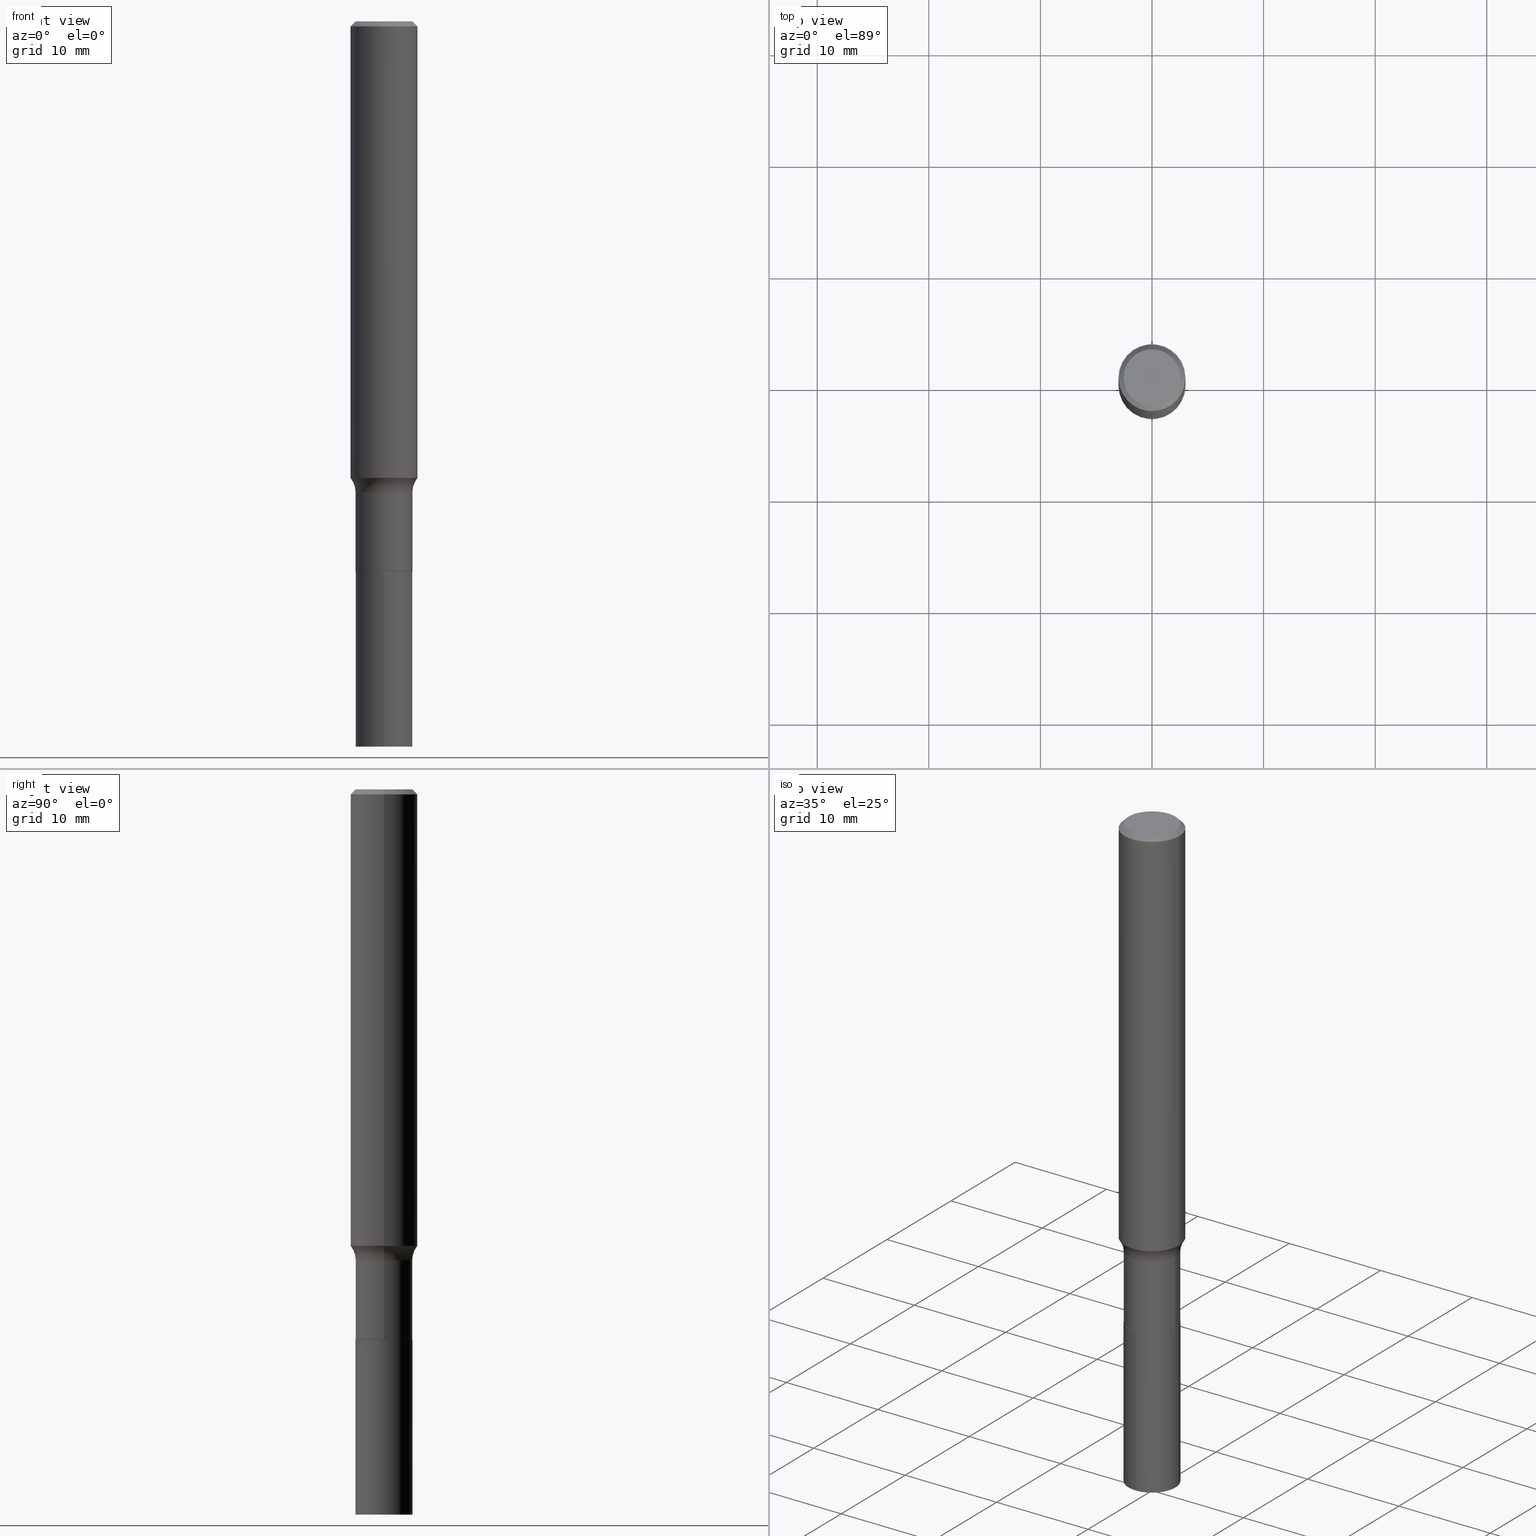
[diagram: canonical four-view strip — front | top / right | iso, engineering-drawing reading convention]
A machine part, canonical four-view strip (front | top / right | iso — engineering-drawing reading convention). The complete STEP part file that produces these views, byte-faithful:
ISO-10303-21;
HEADER;
FILE_DESCRIPTION (( 'STEP AP203' ),
    '1' );
FILE_NAME ('58817.STEP',
    '2024-04-19T14:42:58',
    ( '' ),
    ( '' ),
    'SwSTEP 2.0',
    'SolidWorks 2023',
    '' );
FILE_SCHEMA (( 'CONFIG_CONTROL_DESIGN' ));
ENDSEC;

DATA;
#1 = CARTESIAN_POINT ( 'NONE',  ( 7.015701749847187307E-46, -1.001656274515824970E-31, -2.868857591682589212E-17 ) ) ;
#2 = DIRECTION ( 'NONE',  ( -2.445468806185136597E-29, 3.491481338843145583E-15, 1.000000000000000000 ) ) ;
#3 = AXIS2_PLACEMENT_3D ( 'NONE', #333, #296, #6 ) ;
#4 = ORIENTED_EDGE ( 'NONE', *, *, #187, .T. ) ;
#5 = AXIS2_PLACEMENT_3D ( 'NONE', #364, #435, #299 ) ;
#6 = DIRECTION ( 'NONE',  ( 1.000000000000000000, -6.982962677686267499E-15, 0.000000000000000000 ) ) ;
#7 = APPLICATION_CONTEXT ( 'configuration controlled 3d designs of mechanical parts and assemblies' ) ;
#8 = AXIS2_PLACEMENT_3D ( 'NONE', #133, #211, #420 ) ;
#9 = ORIENTED_EDGE ( 'NONE', *, *, #131, .T. ) ;
#10 = VERTEX_POINT ( 'NONE', #185 ) ;
#11 = ORIENTED_EDGE ( 'NONE', *, *, #161, .T. ) ;
#12 = CIRCLE ( 'NONE', #268, 0.1004999999999999921 ) ;
#13 = EDGE_LOOP ( 'NONE', ( #335, #410, #83, #302 ) ) ;
#14 = DIRECTION ( 'NONE',  ( -2.445468806185136877E-29, 3.491481338843145188E-15, 1.000000000000000000 ) ) ;
#15 = ORIENTED_EDGE ( 'NONE', *, *, #289, .F. ) ;
#16 = SHAPE_DEFINITION_REPRESENTATION ( #367, #87 ) ;
#17 = CARTESIAN_POINT ( 'NONE',  ( -0.1004999999999999921, -5.573189571482893851E-15, -1.940600000000000325 ) ) ;
#18 = FACE_OUTER_BOUND ( 'NONE', #375, .T. ) ;
#19 = ORIENTED_EDGE ( 'NONE', *, *, #363, .F. ) ;
#20 = EDGE_CURVE ( 'NONE', #200, #164, #277, .T. ) ;
#21 = CARTESIAN_POINT ( 'NONE',  ( 0.1000000000000000056, -7.475610694597056827E-15, -1.941100000000000270 ) ) ;
#22 = DIRECTION ( 'NONE',  ( 1.000000000000000000, -6.982962677686267499E-15, 4.883557194083112901E-29 ) ) ;
#23 = AXIS2_PLACEMENT_3D ( 'NONE', #107, #213, #387 ) ;
#24 = FACE_OUTER_BOUND ( 'NONE', #149, .T. ) ;
#25 = VECTOR ( 'NONE', #315, 39.37007874015748143 ) ;
#26 = LINE ( 'NONE', #394, #232 ) ;
#27 = DATE_TIME_ROLE ( 'classification_date' ) ;
#28 = CARTESIAN_POINT ( 'NONE',  ( 6.260876778854223555E-29, -8.931215480289977409E-15, -2.559100000000000374 ) ) ;
#29 = ADVANCED_FACE ( 'NONE', ( #76 ), #199, .T. ) ;
#30 = DIRECTION ( 'NONE',  ( -6.982962677686265922E-15, -1.000000000000000000, 2.718256710113694497E-15 ) ) ;
#31 = PRODUCT_DEFINITION_FORMATION_WITH_SPECIFIED_SOURCE ( 'ANY', '', #301, .NOT_KNOWN. ) ;
#32 = APPROVAL_DATE_TIME ( #321, #331 ) ;
#33 = FACE_OUTER_BOUND ( 'NONE', #229, .T. ) ;
#34 = MANIFOLD_SOLID_BREP ( 'Body-Move/Copy2[1]', #78 ) ;
#35 = VECTOR ( 'NONE', #448, 39.37007874015748854 ) ;
#36 = CARTESIAN_POINT ( 'NONE',  ( 4.746899499685969430E-29, -6.777314426828430156E-15, -1.941100000000000270 ) ) ;
#37 = ADVANCED_FACE ( 'NONE', ( #41 ), #70, .T. ) ;
#38 = ORIENTED_EDGE ( 'NONE', *, *, #220, .T. ) ;
#39 = AXIS2_PLACEMENT_3D ( 'NONE', #114, #402, #459 ) ;
#40 = AXIS2_PLACEMENT_3D ( 'NONE', #165, #323, #170 ) ;
#41 = FACE_OUTER_BOUND ( 'NONE', #368, .T. ) ;
#42 = DIRECTION ( 'NONE',  ( -1.000000000000000000, 6.982962677686267499E-15, 0.000000000000000000 ) ) ;
#43 = APPROVAL_STATUS ( 'not_yet_approved' ) ;
#44 = CC_DESIGN_PERSON_AND_ORGANIZATION_ASSIGNMENT ( #366, #192, ( #301 ) ) ;
#45 = LOCAL_TIME ( 10, 42, 58.00000000000000000, #250 ) ;
#46 = AXIS2_PLACEMENT_3D ( 'NONE', #1, #450, #278 ) ;
#47 = ORIENTED_EDGE ( 'NONE', *, *, #353, .T. ) ;
#48 = ORIENTED_EDGE ( 'NONE', *, *, #272, .F. ) ;
#49 = ADVANCED_FACE ( 'NONE', ( #225 ), #407, .F. ) ;
#50 = ORIENTED_EDGE ( 'NONE', *, *, #447, .T. ) ;
#51 = AXIS2_PLACEMENT_3D ( 'NONE', #152, #189, #42 ) ;
#52 = CYLINDRICAL_SURFACE ( 'NONE', #392, 0.1004999999999999921 ) ;
#53 = ORIENTED_EDGE ( 'NONE', *, *, #20, .F. ) ;
#54 = UNCERTAINTY_MEASURE_WITH_UNIT (LENGTH_MEASURE( 1.000000000000000082E-05 ), #436, 'distance_accuracy_value', 'NONE');
#55 = SECURITY_CLASSIFICATION_LEVEL ( 'unclassified' ) ;
#56 = EDGE_CURVE ( 'NONE', #88, #164, #91, .T. ) ;
#57 = LINE ( 'NONE', #145, #401 ) ;
#58 = ORIENTED_EDGE ( 'NONE', *, *, #363, .T. ) ;
#59 = CARTESIAN_POINT ( 'NONE',  ( 4.746899499685969430E-29, -6.777314426828430156E-15, -1.941100000000000270 ) ) ;
#60 = PRODUCT_DEFINITION ( 'UNKNOWN', '', #31, #112 ) ;
#61 = CARTESIAN_POINT ( 'NONE',  ( -0.1000000000000000056, -6.066771691068330128E-15, -1.941100000000000270 ) ) ;
#62 = CIRCLE ( 'NONE', #3, 0.1181000000000000105 ) ;
#63 = DIRECTION ( 'NONE',  ( -2.445468806185136597E-29, 3.491481338843145583E-15, 1.000000000000000000 ) ) ;
#64 = CARTESIAN_POINT ( 'NONE',  ( -0.1004999999999999921, 7.140954494389006308E-16, -4.943529765706180112E-30 ) ) ;
#65 = APPROVAL_DATE_TIME ( #290, #382 ) ;
#66 = EDGE_CURVE ( 'NONE', #122, #88, #462, .T. ) ;
#67 = DIRECTION ( 'NONE',  ( -2.445468806185136597E-29, 3.491481338843145583E-15, 1.000000000000000000 ) ) ;
#68 = DIRECTION ( 'NONE',  ( -2.445468806185136877E-29, 3.491481338843145188E-15, 1.000000000000000000 ) ) ;
#69 = APPROVAL_DATE_TIME ( #395, #348 ) ;
#70 = CONICAL_SURFACE ( 'NONE', #51, 0.1181000000000000105, 0.7853981633974456145 ) ;
#71 = CARTESIAN_POINT ( 'NONE',  ( 0.1000000000000000056, -7.475610694597056827E-15, -1.941100000000000270 ) ) ;
#72 = AXIS2_PLACEMENT_3D ( 'NONE', #59, #357, #30 ) ;
#73 = CYLINDRICAL_SURFACE ( 'NONE', #432, 0.1004999999999999921 ) ;
#74 = CARTESIAN_POINT ( 'NONE',  ( 4.746899499685969430E-29, -6.777314426828430156E-15, -1.941100000000000270 ) ) ;
#75 = DIRECTION ( 'NONE',  ( -6.982962677686265922E-15, -1.000000000000000000, 3.485276785536480924E-15 ) ) ;
#76 = FACE_OUTER_BOUND ( 'NONE', #160, .T. ) ;
#77 = CONICAL_SURFACE ( 'NONE', #389, 0.1000000000000000056, 0.7853981633975336552 ) ;
#78 = CLOSED_SHELL ( 'NONE', ( #388, #49, #441, #175 ) ) ;
#79 = ORIENTED_EDGE ( 'NONE', *, *, #66, .T. ) ;
#80 = ADVANCED_FACE ( 'NONE', ( #151 ), #113, .F. ) ;
#81 = ORIENTED_EDGE ( 'NONE', *, *, #220, .F. ) ;
#82 = DIRECTION ( 'NONE',  ( 1.000000000000000000, -6.982962677686272233E-15, 0.000000000000000000 ) ) ;
#83 = ORIENTED_EDGE ( 'NONE', *, *, #56, .F. ) ;
#84 = CIRCLE ( 'NONE', #8, 0.1005000000000000060 ) ;
#85 = EDGE_CURVE ( 'NONE', #122, #415, #327, .T. ) ;
#86 = ORIENTED_EDGE ( 'NONE', *, *, #458, .T. ) ;
#87 = ADVANCED_BREP_SHAPE_REPRESENTATION ( '58817', ( #34, #344, #222 ), #465 ) ;
#88 = VERTEX_POINT ( 'NONE', #191 ) ;
#89 = CARTESIAN_POINT ( 'NONE',  ( 4.746899499685969430E-29, -6.777314426828430156E-15, -1.941100000000000270 ) ) ;
#90 = EDGE_LOOP ( 'NONE', ( #365, #231, #336, #269 ) ) ;
#91 = CIRCLE ( 'NONE', #130, 0.1004999999999999782 ) ;
#92 = VECTOR ( 'NONE', #138, 39.37007874015748143 ) ;
#93 = APPROVAL_STATUS ( 'not_yet_approved' ) ;
#94 = CARTESIAN_POINT ( 'NONE',  ( -0.1181000000000000105, 7.628363003171413738E-16, -0.01771500000000012648 ) ) ;
#95 = ORIENTED_EDGE ( 'NONE', *, *, #458, .F. ) ;
#96 = CC_DESIGN_PERSON_AND_ORGANIZATION_ASSIGNMENT ( #144, #217, ( #380 ) ) ;
#97 = DIRECTION ( 'NONE',  ( -2.449801422602351827E-29, 3.485276785536480924E-15, 1.000000000000000000 ) ) ;
#98 = DIRECTION ( 'NONE',  ( -2.445468806185136597E-29, 3.491481338843145583E-15, 1.000000000000000000 ) ) ;
#99 = PLANE ( 'NONE',  #23 ) ;
#100 = TOROIDAL_SURFACE ( 'NONE', #154, 0.1804999999999999938, 0.08000000000000000167 ) ;
#101 = EDGE_CURVE ( 'NONE', #415, #300, #62, .T. ) ;
#102 = PERSON_AND_ORGANIZATION_ROLE ( 'creator' ) ;
#103 = DIRECTION ( 'NONE',  ( 1.000000000000000000, -6.982962677686266711E-15, 4.876176775795935793E-29 ) ) ;
#104 = LINE ( 'NONE', #64, #249 ) ;
#105 = CALENDAR_DATE ( 2024, 19, 4 ) ;
#106 = DIRECTION ( 'NONE',  ( -2.445468806185136597E-29, 3.491481338843145583E-15, 1.000000000000000000 ) ) ;
#107 = CARTESIAN_POINT ( 'NONE',  ( 3.507850874923593654E-46, -5.008281372579124849E-32, -1.434428795841294606E-17 ) ) ;
#108 = EDGE_CURVE ( 'NONE', #411, #155, #12, .T. ) ;
#109 = CARTESIAN_POINT ( 'NONE',  ( 4.746899499685969430E-29, -6.777314426828430156E-15, -1.941100000000000270 ) ) ;
#110 = CC_DESIGN_SECURITY_CLASSIFICATION ( #380, ( #31 ) ) ;
#111 = VECTOR ( 'NONE', #356, 39.37007874015748854 ) ;
#112 = DESIGN_CONTEXT ( 'detailed design', #205, 'design' ) ;
#113 = PLANE ( 'NONE',  #332 ) ;
#114 = CARTESIAN_POINT ( 'NONE',  ( 3.939253197732165806E-29, -5.624209556087381664E-15, -1.610837638889081269 ) ) ;
#115 =( NAMED_UNIT ( * ) PLANE_ANGLE_UNIT ( ) SI_UNIT ( $, .RADIAN. ) );
#116 = CC_DESIGN_PERSON_AND_ORGANIZATION_ASSIGNMENT ( #419, #102, ( #60 ) ) ;
#117 = DIRECTION ( 'NONE',  ( -6.982962677686266711E-15, -1.000000000000000000, 3.491481338843145583E-15 ) ) ;
#118 = EDGE_LOOP ( 'NONE', ( #81, #135 ) ) ;
#119 = APPROVAL_ROLE ( '' ) ;
#120 = EDGE_CURVE ( 'NONE', #200, #122, #121, .T. ) ;
#121 = CIRCLE ( 'NONE', #39, 0.1181000000000002048 ) ;
#122 = VERTEX_POINT ( 'NONE', #386 ) ;
#123 = VECTOR ( 'NONE', #352, 39.37007874015748143 ) ;
#124 = AXIS2_PLACEMENT_3D ( 'NONE', #36, #203, #242 ) ;
#125 = ORIENTED_EDGE ( 'NONE', *, *, #56, .T. ) ;
#126 = CYLINDRICAL_SURFACE ( 'NONE', #374, 0.1181000000000001077 ) ;
#127 = VERTEX_POINT ( 'NONE', #246 ) ;
#128 = DIRECTION ( 'NONE',  ( -2.445468806185136597E-29, 3.491481338843145583E-15, 1.000000000000000000 ) ) ;
#129 = ORIENTED_EDGE ( 'NONE', *, *, #408, .F. ) ;
#130 = AXIS2_PLACEMENT_3D ( 'NONE', #330, #438, #82 ) ;
#131 = EDGE_CURVE ( 'NONE', #305, #155, #176, .T. ) ;
#132 = APPROVAL_STATUS ( 'not_yet_approved' ) ;
#133 = CARTESIAN_POINT ( 'NONE',  ( 6.260876778854223555E-29, -8.931215480289977409E-15, -2.559100000000000374 ) ) ;
#134 = CIRCLE ( 'NONE', #150, 0.1004999999999999921 ) ;
#135 = ORIENTED_EDGE ( 'NONE', *, *, #294, .F. ) ;
#136 = DIRECTION ( 'NONE',  ( 1.000000000000000000, -6.982962677686272233E-15, 0.000000000000000000 ) ) ;
#137 = FACE_OUTER_BOUND ( 'NONE', #198, .T. ) ;
#138 = DIRECTION ( 'NONE',  ( 0.7071067811866078578, -2.468850131082888544E-15, 0.7071067811864871766 ) ) ;
#139 = EDGE_CURVE ( 'NONE', #164, #88, #358, .T. ) ;
#140 =( LENGTH_UNIT ( ) NAMED_UNIT ( * ) SI_UNIT ( $, .METRE. ) );
#141 = CARTESIAN_POINT ( 'NONE',  ( 0.1004999999999999921, -7.477356435266479120E-15, -1.940600000000000325 ) ) ;
#142 = DIRECTION ( 'NONE',  ( -2.445468806185136597E-29, 3.491481338843145583E-15, 1.000000000000000000 ) ) ;
#143 = AXIS2_PLACEMENT_3D ( 'NONE', #454, #285, #429 ) ;
#144 = PERSON_AND_ORGANIZATION ( #261, #399 ) ;
#145 = CARTESIAN_POINT ( 'NONE',  ( -0.1181000000000001077, 8.391509709326790846E-16, -5.809262341591049389E-30 ) ) ;
#146 = CYLINDRICAL_SURFACE ( 'NONE', #424, 0.1181000000000001077 ) ;
#147 = EDGE_CURVE ( 'NONE', #400, #411, #284, .T. ) ;
#148 = DIRECTION ( 'NONE',  ( -2.449801422602351827E-29, 3.485276785536480924E-15, 1.000000000000000000 ) ) ;
#149 = EDGE_LOOP ( 'NONE', ( #19, #50, #86, #48 ) ) ;
#150 = AXIS2_PLACEMENT_3D ( 'NONE', #349, #63, #221 ) ;
#151 = FACE_OUTER_BOUND ( 'NONE', #118, .T. ) ;
#152 = CARTESIAN_POINT ( 'NONE',  ( 4.332147990157000247E-31, -6.185159191760676557E-17, -0.01771500000000012648 ) ) ;
#153 = ADVANCED_FACE ( 'NONE', ( #223 ), #52, .T. ) ;
#154 = AXIS2_PLACEMENT_3D ( 'NONE', #239, #362, #425 ) ;
#155 = VERTEX_POINT ( 'NONE', #141 ) ;
#156 = AXIS2_PLACEMENT_3D ( 'NONE', #172, #286, #136 ) ;
#157 = CIRCLE ( 'NONE', #72, 0.1005000000000000060 ) ;
#158 = ORIENTED_EDGE ( 'NONE', *, *, #187, .F. ) ;
#159 = DIRECTION ( 'NONE',  ( 1.000000000000000000, 0.000000000000000000, 0.000000000000000000 ) ) ;
#160 = EDGE_LOOP ( 'NONE', ( #376, #413, #442, #158 ) ) ;
#161 = EDGE_CURVE ( 'NONE', #300, #415, #306, .T. ) ;
#162 = ORIENTED_EDGE ( 'NONE', *, *, #259, .T. ) ;
#163 = ORIENTED_EDGE ( 'NONE', *, *, #337, .F. ) ;
#164 = VERTEX_POINT ( 'NONE', #393 ) ;
#165 = CARTESIAN_POINT ( 'NONE',  ( 4.746899499685969430E-29, -6.777314426828430156E-15, -1.941100000000000270 ) ) ;
#166 = ORIENTED_EDGE ( 'NONE', *, *, #20, .T. ) ;
#167 = CC_DESIGN_DATE_AND_TIME_ASSIGNMENT ( #206, #27, ( #380 ) ) ;
#168 = COORDINATED_UNIVERSAL_TIME_OFFSET ( 5, 0, .BEHIND. ) ;
#169 = DIRECTION ( 'NONE',  ( 1.000000000000000000, -6.982962677686266711E-15, 4.875668750515085695E-29 ) ) ;
#170 = DIRECTION ( 'NONE',  ( 1.000000000000000000, -6.982962677686264344E-15, 0.000000000000000000 ) ) ;
#171 = VERTEX_POINT ( 'NONE', #378 ) ;
#172 = CARTESIAN_POINT ( 'NONE',  ( 4.061679140192893636E-29, -5.799001355684580113E-15, -1.660900000000000043 ) ) ;
#173 = DIRECTION ( 'NONE',  ( -2.445468806185136597E-29, 3.491481338843145583E-15, 1.000000000000000000 ) ) ;
#174 = CIRCLE ( 'NONE', #434, 0.1003850000000000159 ) ;
#175 = ADVANCED_FACE ( 'NONE', ( #317 ), #383, .F. ) ;
#176 = LINE ( 'NONE', #21, #92 ) ;
#177 = FACE_OUTER_BOUND ( 'NONE', #90, .T. ) ;
#178 = PERSON_AND_ORGANIZATION_ROLE ( 'design_supplier' ) ;
#179 = DIRECTION ( 'NONE',  ( -6.982962677686265922E-15, -1.000000000000000000, 5.436513420227388995E-15 ) ) ;
#180 = CARTESIAN_POINT ( 'NONE',  ( -7.017877491074223465E-16, -0.1005000000000067922, -1.941100000000000048 ) ) ;
#181 = LOCAL_TIME ( 10, 42, 58.00000000000000000, #168 ) ;
#182 = PERSON_AND_ORGANIZATION ( #261, #399 ) ;
#183 = FACE_OUTER_BOUND ( 'NONE', #13, .T. ) ;
#184 = DIRECTION ( 'NONE',  ( -2.438088387897960049E-29, 3.491481338843145188E-15, 1.000000000000000000 ) ) ;
#185 = CARTESIAN_POINT ( 'NONE',  ( 7.140954494389633452E-16, 0.1004999999999932336, -1.941100000000000492 ) ) ;
#186 = CIRCLE ( 'NONE', #445, 0.1000000000000000056 ) ;
#187 = EDGE_CURVE ( 'NONE', #171, #300, #219, .T. ) ;
#188 =( NAMED_UNIT ( * ) SI_UNIT ( $, .STERADIAN. ) SOLID_ANGLE_UNIT ( ) );
#189 = DIRECTION ( 'NONE',  ( 2.445468806185136597E-29, -3.491481338843145583E-15, -1.000000000000000000 ) ) ;
#190 = ORIENTED_EDGE ( 'NONE', *, *, #210, .F. ) ;
#191 = CARTESIAN_POINT ( 'NONE',  ( 0.1004999999999999782, -6.500789104792050580E-15, -1.660900000000000043 ) ) ;
#192 = PERSON_AND_ORGANIZATION_ROLE ( 'design_owner' ) ;
#193 = ADVANCED_FACE ( 'NONE', ( #183 ), #73, .T. ) ;
#194 = ORIENTED_EDGE ( 'NONE', *, *, #120, .F. ) ;
#195 = APPROVAL_PERSON_ORGANIZATION ( #234, #331, #119 ) ;
#196 = EDGE_LOOP ( 'NONE', ( #190, #266, #347, #273 ) ) ;
#197 = AXIS2_PLACEMENT_3D ( 'NONE', #89, #398, #274 ) ;
#198 = EDGE_LOOP ( 'NONE', ( #53, #163, #79, #125 ) ) ;
#199 = CONICAL_SURFACE ( 'NONE', #5, 0.1181000000000000105, 0.7853981633974456145 ) ;
#200 = VERTEX_POINT ( 'NONE', #287 ) ;
#201 = ADVANCED_FACE ( 'NONE', ( #304 ), #100, .F. ) ;
#202 = VECTOR ( 'NONE', #314, 39.37007874015748143 ) ;
#203 = DIRECTION ( 'NONE',  ( -2.445468806185136597E-29, 3.491481338843145583E-15, 1.000000000000000000 ) ) ;
#204 = ORIENTED_EDGE ( 'NONE', *, *, #421, .F. ) ;
#205 = APPLICATION_CONTEXT ( 'configuration controlled 3d designs of mechanical parts and assemblies' ) ;
#206 = DATE_AND_TIME ( #214, #181 ) ;
#207 = DIRECTION ( 'NONE',  ( 1.000000000000000000, -6.982962677686266711E-15, 4.876176775795935793E-29 ) ) ;
#208 = ORIENTED_EDGE ( 'NONE', *, *, #318, .F. ) ;
#209 = CARTESIAN_POINT ( 'NONE',  ( -7.017877491074223465E-16, -0.1005000000000067922, -1.941100000000000048 ) ) ;
#210 = EDGE_CURVE ( 'NONE', #200, #300, #57, .T. ) ;
#211 = DIRECTION ( 'NONE',  ( -2.449801422602351827E-29, 3.485276785536480924E-15, 1.000000000000000000 ) ) ;
#212 = CIRCLE ( 'NONE', #313, 0.1005000000000000060 ) ;
#213 = DIRECTION ( 'NONE',  ( 2.438088387897960049E-29, -3.491481338843145188E-15, -1.000000000000000000 ) ) ;
#214 = CALENDAR_DATE ( 2024, 19, 4 ) ;
#215 = LINE ( 'NONE', #251, #111 ) ;
#216 = CARTESIAN_POINT ( 'NONE',  ( -0.1000000000000000056, -6.064122463894218927E-15, -1.941100000000000270 ) ) ;
#217 = PERSON_AND_ORGANIZATION_ROLE ( 'classification_officer' ) ;
#218 = AXIS2_PLACEMENT_3D ( 'NONE', #264, #329, #75 ) ;
#219 = LINE ( 'NONE', #94, #35 ) ;
#220 = EDGE_CURVE ( 'NONE', #305, #400, #369, .T. ) ;
#221 = DIRECTION ( 'NONE',  ( 1.000000000000000000, -6.982962677686270655E-15, 0.000000000000000000 ) ) ;
#222 = AXIS2_PLACEMENT_3D ( 'NONE', #271, #276, #159 ) ;
#223 = FACE_OUTER_BOUND ( 'NONE', #243, .T. ) ;
#224 = DIRECTION ( 'NONE',  ( 1.000000000000000000, -6.982962677686265922E-15, 4.876176775795935793E-29 ) ) ;
#225 = FACE_OUTER_BOUND ( 'NONE', #455, .T. ) ;
#226 = CARTESIAN_POINT ( 'NONE',  ( -0.1804999999999999938, -4.516471717637599322E-15, -1.660900000000000043 ) ) ;
#227 = DIRECTION ( 'NONE',  ( -2.445468806185136877E-29, 3.491481338843145188E-15, 1.000000000000000000 ) ) ;
#228 = ADVANCED_FACE ( 'NONE', ( #18 ), #404, .T. ) ;
#229 = EDGE_LOOP ( 'NONE', ( #38, #443, #204, #444 ) ) ;
#230 = DIRECTION ( 'NONE',  ( 1.000000000000000000, -6.982962677686259611E-15, 0.000000000000000000 ) ) ;
#231 = ORIENTED_EDGE ( 'NONE', *, *, #210, .T. ) ;
#232 = VECTOR ( 'NONE', #68, 39.37007874015748143 ) ;
#233 = ORIENTED_EDGE ( 'NONE', *, *, #139, .T. ) ;
#234 = PERSON_AND_ORGANIZATION ( #261, #399 ) ;
#235 = EDGE_LOOP ( 'NONE', ( #194, #166, #233, #449 ) ) ;
#236 = ADVANCED_FACE ( 'NONE', ( #461 ), #126, .T. ) ;
#237 = DIMENSIONAL_EXPONENTS ( 1.000000000000000000, 0.000000000000000000, 0.000000000000000000, 0.000000000000000000, 0.000000000000000000, 0.000000000000000000, 0.000000000000000000 ) ;
#238 = CLOSED_SHELL ( 'NONE', ( #254, #29, #371, #201, #193, #153, #437, #236, #37, #361, #80, #228 ) ) ;
#239 = CARTESIAN_POINT ( 'NONE',  ( 4.061679140192893636E-29, -5.799001355684580113E-15, -1.660900000000000043 ) ) ;
#240 = ORIENTED_EDGE ( 'NONE', *, *, #408, .T. ) ;
#241 = COORDINATED_UNIVERSAL_TIME_OFFSET ( 5, 0, .BEHIND. ) ;
#242 = DIRECTION ( 'NONE',  ( 1.000000000000000000, -6.982962677686264344E-15, 0.000000000000000000 ) ) ;
#243 = EDGE_LOOP ( 'NONE', ( #308, #339, #47, #406 ) ) ;
#244 = LINE ( 'NONE', #209, #123 ) ;
#245 = CARTESIAN_POINT ( 'NONE',  ( 0.1181000000000000105, -8.865394841523550528E-16, -0.01771500000000012648 ) ) ;
#246 = CARTESIAN_POINT ( 'NONE',  ( 0.1003850000000000159, -7.803837484803601317E-16, -2.868857591682071522E-17 ) ) ;
#247 = CC_DESIGN_APPROVAL ( #382, ( #31 ) ) ;
#248 = CARTESIAN_POINT ( 'NONE',  ( 7.140954494389480611E-16, 0.1004999999999932336, -1.941100000000000492 ) ) ;
#249 = VECTOR ( 'NONE', #256, 39.37007874015748143 ) ;
#250 = COORDINATED_UNIVERSAL_TIME_OFFSET ( 5, 0, .BEHIND. ) ;
#251 = CARTESIAN_POINT ( 'NONE',  ( 0.1181000000000000105, -8.720764054544248225E-16, -0.01771500000000012648 ) ) ;
#252 = DIRECTION ( 'NONE',  ( 1.000000000000000000, -6.982962677686268288E-15, 0.000000000000000000 ) ) ;
#253 = APPROVAL_ROLE ( '' ) ;
#254 = ADVANCED_FACE ( 'NONE', ( #33 ), #77, .T. ) ;
#255 = CARTESIAN_POINT ( 'NONE',  ( 4.332147990157000247E-31, -6.185159191760676557E-17, -0.01771500000000012648 ) ) ;
#256 = DIRECTION ( 'NONE',  ( -2.445468806185136877E-29, 3.491481338843145188E-15, 1.000000000000000000 ) ) ;
#257 = DIRECTION ( 'NONE',  ( 1.000000000000000000, -6.982962677686264344E-15, 0.000000000000000000 ) ) ;
#258 = CIRCLE ( 'NONE', #46, 0.1003850000000000159 ) ;
#259 = EDGE_CURVE ( 'NONE', #127, #171, #258, .T. ) ;
#260 = CARTESIAN_POINT ( 'NONE',  ( 0.1804999999999999938, -7.059426119006951444E-15, -1.660900000000000043 ) ) ;
#261 = PERSON ( 'UNSPECIFIED', 'UNSPECIFIED', 'UNSPECIFIED', ('UNSPECIFIED'), ('UNSPECIFIED'), ('UNSPECIFIED') ) ;
#262 = LENGTH_MEASURE_WITH_UNIT ( LENGTH_MEASURE( 0.02539999999999999897 ), #140 );
#263 = ORIENTED_EDGE ( 'NONE', *, *, #447, .F. ) ;
#264 = CARTESIAN_POINT ( 'NONE',  ( -3.456904510171921093E-29, -2.284763138793740386E-14, -2.559100000000000374 ) ) ;
#265 = AXIS2_PLACEMENT_3D ( 'NONE', #255, #293, #346 ) ;
#266 = ORIENTED_EDGE ( 'NONE', *, *, #120, .T. ) ;
#267 = CALENDAR_DATE ( 2024, 19, 4 ) ;
#268 = AXIS2_PLACEMENT_3D ( 'NONE', #326, #2, #295 ) ;
#269 = ORIENTED_EDGE ( 'NONE', *, *, #85, .F. ) ;
#270 = AXIS2_PLACEMENT_3D ( 'NONE', #310, #385, #22 ) ;
#271 = CARTESIAN_POINT ( 'NONE',  ( 0.000000000000000000, 0.000000000000000000, 0.000000000000000000 ) ) ;
#272 = EDGE_CURVE ( 'NONE', #10, #433, #212, .T. ) ;
#273 = ORIENTED_EDGE ( 'NONE', *, *, #161, .F. ) ;
#274 = DIRECTION ( 'NONE',  ( 6.982962677686265922E-15, 1.000000000000000000, -3.485276785536480924E-15 ) ) ;
#275 = EDGE_LOOP ( 'NONE', ( #418, #58, #129, #95 ) ) ;
#276 = DIRECTION ( 'NONE',  ( 0.000000000000000000, 0.000000000000000000, 1.000000000000000000 ) ) ;
#277 = CIRCLE ( 'NONE', #452, 0.08000000000000000167 ) ;
#278 = DIRECTION ( 'NONE',  ( 1.000000000000000000, -6.982962677686266711E-15, 4.875668750515085695E-29 ) ) ;
#279 = ORIENTED_EDGE ( 'NONE', *, *, #294, .T. ) ;
#280 = EDGE_CURVE ( 'NONE', #127, #415, #215, .T. ) ;
#281 = AXIS2_PLACEMENT_3D ( 'NONE', #28, #431, #179 ) ;
#282 = APPROVAL_ROLE ( '' ) ;
#283 = CARTESIAN_POINT ( 'NONE',  ( 4.746899499685969430E-29, -6.777314426828430156E-15, -1.941100000000000270 ) ) ;
#284 = LINE ( 'NONE', #61, #25 ) ;
#285 = DIRECTION ( 'NONE',  ( -2.449801422602351827E-29, 3.485276785536480924E-15, 1.000000000000000000 ) ) ;
#286 = DIRECTION ( 'NONE',  ( -2.445468806185136597E-29, 3.491481338843145583E-15, 1.000000000000000000 ) ) ;
#287 = CARTESIAN_POINT ( 'NONE',  ( -0.1181000000000001909, -4.785058585154701101E-15, -1.610837638889081269 ) ) ;
#288 = FACE_OUTER_BOUND ( 'NONE', #275, .T. ) ;
#289 = EDGE_CURVE ( 'NONE', #451, #343, #351, .T. ) ;
#290 = DATE_AND_TIME ( #105, #312 ) ;
#291 = CARTESIAN_POINT ( 'NONE',  ( 4.746899499685969430E-29, -6.777314426828430156E-15, -1.941100000000000270 ) ) ;
#292 = FACE_OUTER_BOUND ( 'NONE', #384, .T. ) ;
#293 = DIRECTION ( 'NONE',  ( -2.445468806185136597E-29, 3.491481338843145583E-15, 1.000000000000000000 ) ) ;
#294 = EDGE_CURVE ( 'NONE', #400, #305, #186, .T. ) ;
#295 = DIRECTION ( 'NONE',  ( 1.000000000000000000, -6.982962677686270655E-15, 0.000000000000000000 ) ) ;
#296 = DIRECTION ( 'NONE',  ( -2.445468806185136597E-29, 3.491481338843145583E-15, 1.000000000000000000 ) ) ;
#297 = DIRECTION ( 'NONE',  ( 7.105427357601001859E-15, 1.000000000000000000, -3.491481338843145583E-15 ) ) ;
#298 = PRODUCT_RELATED_PRODUCT_CATEGORY ( 'detail', '', ( #301 ) ) ;
#299 = DIRECTION ( 'NONE',  ( -1.000000000000000000, 6.982962677686267499E-15, 0.000000000000000000 ) ) ;
#300 = VERTEX_POINT ( 'NONE', #390 ) ;
#301 = PRODUCT ( '58817', '58817', '', ( #338 ) ) ;
#302 = ORIENTED_EDGE ( 'NONE', *, *, #353, .F. ) ;
#303 = AXIS2_PLACEMENT_3D ( 'NONE', #463, #142, #252 ) ;
#304 = FACE_OUTER_BOUND ( 'NONE', #235, .T. ) ;
#305 = VERTEX_POINT ( 'NONE', #71 ) ;
#306 = CIRCLE ( 'NONE', #265, 0.1181000000000000105 ) ;
#307 = DIRECTION ( 'NONE',  ( -2.445468806185136597E-29, 3.491481338843145583E-15, 1.000000000000000000 ) ) ;
#308 = ORIENTED_EDGE ( 'NONE', *, *, #325, .F. ) ;
#309 = PERSON_AND_ORGANIZATION ( #261, #399 ) ;
#310 = CARTESIAN_POINT ( 'NONE',  ( 4.061679140192893636E-29, -5.799001355684580113E-15, -1.660900000000000043 ) ) ;
#311 = ORIENTED_EDGE ( 'NONE', *, *, #108, .F. ) ;
#312 = LOCAL_TIME ( 10, 42, 58.00000000000000000, #241 ) ;
#313 = AXIS2_PLACEMENT_3D ( 'NONE', #417, #148, #466 ) ;
#314 = DIRECTION ( 'NONE',  ( -2.449801422602351547E-29, 3.485276785536480924E-15, 1.000000000000000000 ) ) ;
#315 = DIRECTION ( 'NONE',  ( -0.7071067811866078578, 7.493145998870571886E-15, 0.7071067811864871766 ) ) ;
#316 = CYLINDRICAL_SURFACE ( 'NONE', #328, 0.1005000000000000060 ) ;
#317 = FACE_OUTER_BOUND ( 'NONE', #379, .T. ) ;
#318 = EDGE_CURVE ( 'NONE', #171, #127, #174, .T. ) ;
#319 = DIRECTION ( 'NONE',  ( 1.000000000000000000, -6.982962677686266711E-15, 4.876176775795935793E-29 ) ) ;
#320 = AXIS2_PLACEMENT_3D ( 'NONE', #260, #117, #230 ) ;
#321 = DATE_AND_TIME ( #267, #457 ) ;
#322 = CC_DESIGN_APPROVAL ( #348, ( #380 ) ) ;
#323 = DIRECTION ( 'NONE',  ( -2.445468806185136597E-29, 3.491481338843145583E-15, 1.000000000000000000 ) ) ;
#324 = DIRECTION ( 'NONE',  ( 1.000000000000000000, -6.982962677686264344E-15, 0.000000000000000000 ) ) ;
#325 = EDGE_CURVE ( 'NONE', #411, #164, #104, .T. ) ;
#326 = CARTESIAN_POINT ( 'NONE',  ( 4.745676765282876629E-29, -6.775568686159008653E-15, -1.940600000000000325 ) ) ;
#327 = LINE ( 'NONE', #405, #377 ) ;
#328 = AXIS2_PLACEMENT_3D ( 'NONE', #283, #97, #460 ) ;
#329 = DIRECTION ( 'NONE',  ( -2.449801422602351827E-29, 3.485276785536480924E-15, 1.000000000000000000 ) ) ;
#330 = CARTESIAN_POINT ( 'NONE',  ( 4.061679140192893636E-29, -5.799001355684580113E-15, -1.660900000000000043 ) ) ;
#331 = APPROVAL ( #43, 'UNSPECIFIED' ) ;
#332 = AXIS2_PLACEMENT_3D ( 'NONE', #74, #184, #224 ) ;
#333 = CARTESIAN_POINT ( 'NONE',  ( 4.332147990157000247E-31, -6.185159191760676557E-17, -0.01771500000000012648 ) ) ;
#334 = COORDINATED_UNIVERSAL_TIME_OFFSET ( 5, 0, .BEHIND. ) ;
#335 = ORIENTED_EDGE ( 'NONE', *, *, #421, .T. ) ;
#336 = ORIENTED_EDGE ( 'NONE', *, *, #101, .F. ) ;
#337 = EDGE_CURVE ( 'NONE', #122, #200, #341, .T. ) ;
#338 = MECHANICAL_CONTEXT ( 'NONE', #7, 'mechanical' ) ;
#339 = ORIENTED_EDGE ( 'NONE', *, *, #108, .T. ) ;
#340 = ORIENTED_EDGE ( 'NONE', *, *, #280, .F. ) ;
#341 = CIRCLE ( 'NONE', #303, 0.1181000000000002048 ) ;
#342 = CARTESIAN_POINT ( 'NONE',  ( 0.000000000000000000, 0.000000000000000000, 0.000000000000000000 ) ) ;
#343 = VERTEX_POINT ( 'NONE', #423 ) ;
#344 = MANIFOLD_SOLID_BREP ( 'Body-Move/Copy2[2]', #238 ) ;
#345 = COORDINATED_UNIVERSAL_TIME_OFFSET ( 5, 0, .BEHIND. ) ;
#346 = DIRECTION ( 'NONE',  ( 1.000000000000000000, -6.982962677686267499E-15, 0.000000000000000000 ) ) ;
#347 = ORIENTED_EDGE ( 'NONE', *, *, #85, .T. ) ;
#348 = APPROVAL ( #132, 'UNSPECIFIED' ) ;
#349 = CARTESIAN_POINT ( 'NONE',  ( 4.745676765282876629E-29, -6.775568686159008653E-15, -1.940600000000000325 ) ) ;
#350 = APPROVAL_PERSON_ORGANIZATION ( #182, #382, #253 ) ;
#351 = CIRCLE ( 'NONE', #281, 0.1005000000000000060 ) ;
#352 = DIRECTION ( 'NONE',  ( -2.449801422602351547E-29, 3.485276785536480924E-15, 1.000000000000000000 ) ) ;
#353 = EDGE_CURVE ( 'NONE', #155, #88, #26, .T. ) ;
#354 = LINE ( 'NONE', #248, #202 ) ;
#355 = PERSON_AND_ORGANIZATION_ROLE ( 'creator' ) ;
#356 = DIRECTION ( 'NONE',  ( 0.7071067811865454633, -7.319954787623246579E-15, -0.7071067811865493491 ) ) ;
#357 = DIRECTION ( 'NONE',  ( -2.449801422602351827E-29, 3.485276785536480924E-15, 1.000000000000000000 ) ) ;
#358 = CIRCLE ( 'NONE', #156, 0.1004999999999999782 ) ;
#359 = CALENDAR_DATE ( 2024, 19, 4 ) ;
#360 = DIRECTION ( 'NONE',  ( 1.000000000000000000, -6.982962677686266711E-15, 4.876176775795935793E-29 ) ) ;
#361 = ADVANCED_FACE ( 'NONE', ( #292 ), #99, .F. ) ;
#362 = DIRECTION ( 'NONE',  ( -2.445468806185136597E-29, 3.491481338843145583E-15, 1.000000000000000000 ) ) ;
#363 = EDGE_CURVE ( 'NONE', #343, #10, #354, .T. ) ;
#364 = CARTESIAN_POINT ( 'NONE',  ( 4.332147990157000247E-31, -6.185159191760676557E-17, -0.01771500000000012648 ) ) ;
#365 = ORIENTED_EDGE ( 'NONE', *, *, #337, .T. ) ;
#366 = PERSON_AND_ORGANIZATION ( #261, #399 ) ;
#367 = PRODUCT_DEFINITION_SHAPE ( 'NONE', 'NONE',  #60 ) ;
#368 = EDGE_LOOP ( 'NONE', ( #340, #208, #4, #11 ) ) ;
#369 = CIRCLE ( 'NONE', #124, 0.1000000000000000056 ) ;
#370 = DIRECTION ( 'NONE',  ( -1.000000000000000000, 7.105427357600997914E-15, 0.000000000000000000 ) ) ;
#371 = ADVANCED_FACE ( 'NONE', ( #177 ), #146, .T. ) ;
#372 = LOCAL_TIME ( 10, 42, 58.00000000000000000, #345 ) ;
#373 = ORIENTED_EDGE ( 'NONE', *, *, #272, .T. ) ;
#374 = AXIS2_PLACEMENT_3D ( 'NONE', #342, #307, #103 ) ;
#375 = EDGE_LOOP ( 'NONE', ( #403, #279, #9, #311 ) ) ;
#376 = ORIENTED_EDGE ( 'NONE', *, *, #259, .F. ) ;
#377 = VECTOR ( 'NONE', #227, 39.37007874015748143 ) ;
#378 = CARTESIAN_POINT ( 'NONE',  ( -0.1003850000000000159, 7.319105043583386689E-16, -2.868857591683090262E-17 ) ) ;
#379 = EDGE_LOOP ( 'NONE', ( #240, #373 ) ) ;
#380 = SECURITY_CLASSIFICATION ( '', '', #55 ) ;
#381 = PERSON_AND_ORGANIZATION ( #261, #399 ) ;
#382 = APPROVAL ( #93, 'UNSPECIFIED' ) ;
#383 = PLANE ( 'NONE',  #197 ) ;
#384 = EDGE_LOOP ( 'NONE', ( #440, #162 ) ) ;
#385 = DIRECTION ( 'NONE',  ( -2.445468806185136597E-29, 3.491481338843145583E-15, 1.000000000000000000 ) ) ;
#386 = CARTESIAN_POINT ( 'NONE',  ( 0.1181000000000001909, -6.448897448322129927E-15, -1.610837638889081269 ) ) ;
#387 = DIRECTION ( 'NONE',  ( -1.000000000000000000, 6.982962677686265922E-15, -4.876176775795935793E-29 ) ) ;
#388 = ADVANCED_FACE ( 'NONE', ( #288 ), #316, .T. ) ;
#389 = AXIS2_PLACEMENT_3D ( 'NONE', #291, #428, #324 ) ;
#390 = CARTESIAN_POINT ( 'NONE',  ( -0.1181000000000000105, -2.003879603069814157E-15, -0.01771500000000012648 ) ) ;
#391 = DATE_TIME_ROLE ( 'creation_date' ) ;
#392 = AXIS2_PLACEMENT_3D ( 'NONE', #396, #67, #207 ) ;
#393 = CARTESIAN_POINT ( 'NONE',  ( -0.1004999999999999782, -5.573189571482893851E-15, -1.660900000000000043 ) ) ;
#394 = CARTESIAN_POINT ( 'NONE',  ( 0.1004999999999999921, -7.017877491074697768E-16, 4.900557659674914995E-30 ) ) ;
#395 = DATE_AND_TIME ( #464, #372 ) ;
#396 = CARTESIAN_POINT ( 'NONE',  ( 0.000000000000000000, 0.000000000000000000, 0.000000000000000000 ) ) ;
#397 = CARTESIAN_POINT ( 'NONE',  ( 0.000000000000000000, 0.000000000000000000, 0.000000000000000000 ) ) ;
#398 = DIRECTION ( 'NONE',  ( 2.449801422602351827E-29, -3.485276785536480924E-15, -1.000000000000000000 ) ) ;
#399 = ORGANIZATION ( 'UNSPECIFIED', 'UNSPECIFIED', '' ) ;
#400 = VERTEX_POINT ( 'NONE', #216 ) ;
#401 = VECTOR ( 'NONE', #14, 39.37007874015748143 ) ;
#402 = DIRECTION ( 'NONE',  ( -2.445468806185136597E-29, 3.491481338843145583E-15, 1.000000000000000000 ) ) ;
#403 = ORIENTED_EDGE ( 'NONE', *, *, #147, .F. ) ;
#404 = CONICAL_SURFACE ( 'NONE', #40, 0.1000000000000000056, 0.7853981633975336552 ) ;
#405 = CARTESIAN_POINT ( 'NONE',  ( 0.1181000000000001077, -8.246878922347488542E-16, 5.758764772215005345E-30 ) ) ;
#406 = ORIENTED_EDGE ( 'NONE', *, *, #139, .F. ) ;
#407 = PLANE ( 'NONE',  #218 ) ;
#408 = EDGE_CURVE ( 'NONE', #433, #10, #157, .T. ) ;
#409 = APPLICATION_PROTOCOL_DEFINITION ( 'international standard', 'config_control_design', 1994, #205 ) ;
#410 = ORIENTED_EDGE ( 'NONE', *, *, #325, .T. ) ;
#411 = VERTEX_POINT ( 'NONE', #17 ) ;
#412 = TOROIDAL_SURFACE ( 'NONE', #270, 0.1804999999999999938, 0.08000000000000000167 ) ;
#413 = ORIENTED_EDGE ( 'NONE', *, *, #280, .T. ) ;
#414 = CARTESIAN_POINT ( 'NONE',  ( 0.000000000000000000, 0.000000000000000000, 0.000000000000000000 ) ) ;
#415 = VERTEX_POINT ( 'NONE', #245 ) ;
#416 = CC_DESIGN_DATE_AND_TIME_ASSIGNMENT ( #453, #391, ( #60 ) ) ;
#417 = CARTESIAN_POINT ( 'NONE',  ( 4.746899499685969430E-29, -6.777314426828430156E-15, -1.941100000000000270 ) ) ;
#418 = ORIENTED_EDGE ( 'NONE', *, *, #289, .T. ) ;
#419 = PERSON_AND_ORGANIZATION ( #261, #399 ) ;
#420 = DIRECTION ( 'NONE',  ( -6.982962677686265922E-15, -1.000000000000000000, 5.436513420227388995E-15 ) ) ;
#421 = EDGE_CURVE ( 'NONE', #155, #411, #134, .T. ) ;
#422 = CARTESIAN_POINT ( 'NONE',  ( -7.017877491074071610E-16, -0.1005000000000089433, -2.559099999999999930 ) ) ;
#423 = CARTESIAN_POINT ( 'NONE',  ( 7.140954494389557524E-16, 0.1004999999999910826, -2.559100000000001263 ) ) ;
#424 = AXIS2_PLACEMENT_3D ( 'NONE', #397, #98, #319 ) ;
#425 = DIRECTION ( 'NONE',  ( 1.000000000000000000, -6.982962677686267499E-15, 4.883557194083112901E-29 ) ) ;
#426 = CARTESIAN_POINT ( 'NONE',  ( 7.015701749847187307E-46, -1.001656274515824970E-31, -2.868857591682589212E-17 ) ) ;
#427 = PERSON_AND_ORGANIZATION ( #261, #399 ) ;
#428 = DIRECTION ( 'NONE',  ( -2.445468806185136597E-29, 3.491481338843145583E-15, 1.000000000000000000 ) ) ;
#429 = DIRECTION ( 'NONE',  ( -6.982962677686265922E-15, -1.000000000000000000, 2.718256710113694497E-15 ) ) ;
#430 = CC_DESIGN_PERSON_AND_ORGANIZATION_ASSIGNMENT ( #381, #355, ( #31 ) ) ;
#431 = DIRECTION ( 'NONE',  ( -2.449801422602351827E-29, 3.485276785536480924E-15, 1.000000000000000000 ) ) ;
#432 = AXIS2_PLACEMENT_3D ( 'NONE', #414, #128, #360 ) ;
#433 = VERTEX_POINT ( 'NONE', #180 ) ;
#434 = AXIS2_PLACEMENT_3D ( 'NONE', #426, #173, #169 ) ;
#435 = DIRECTION ( 'NONE',  ( 2.445468806185136597E-29, -3.491481338843145583E-15, -1.000000000000000000 ) ) ;
#436 =( CONVERSION_BASED_UNIT ( 'INCH', #262 ) LENGTH_UNIT ( ) NAMED_UNIT ( #237 ) );
#437 = ADVANCED_FACE ( 'NONE', ( #137 ), #412, .F. ) ;
#438 = DIRECTION ( 'NONE',  ( -2.445468806185136597E-29, 3.491481338843145583E-15, 1.000000000000000000 ) ) ;
#439 = CC_DESIGN_APPROVAL ( #331, ( #60 ) ) ;
#440 = ORIENTED_EDGE ( 'NONE', *, *, #318, .T. ) ;
#441 = ADVANCED_FACE ( 'NONE', ( #24 ), #467, .T. ) ;
#442 = ORIENTED_EDGE ( 'NONE', *, *, #101, .T. ) ;
#443 = ORIENTED_EDGE ( 'NONE', *, *, #147, .T. ) ;
#444 = ORIENTED_EDGE ( 'NONE', *, *, #131, .F. ) ;
#445 = AXIS2_PLACEMENT_3D ( 'NONE', #109, #106, #257 ) ;
#446 = APPLICATION_PROTOCOL_DEFINITION ( 'international standard', 'config_control_design', 1994, #7 ) ;
#447 = EDGE_CURVE ( 'NONE', #343, #451, #84, .T. ) ;
#448 = DIRECTION ( 'NONE',  ( -0.7071067811865454633, 2.468850131082235761E-15, -0.7071067811865493491 ) ) ;
#449 = ORIENTED_EDGE ( 'NONE', *, *, #66, .F. ) ;
#450 = DIRECTION ( 'NONE',  ( -2.445468806185136597E-29, 3.491481338843145583E-15, 1.000000000000000000 ) ) ;
#451 = VERTEX_POINT ( 'NONE', #422 ) ;
#452 = AXIS2_PLACEMENT_3D ( 'NONE', #226, #297, #370 ) ;
#453 = DATE_AND_TIME ( #359, #45 ) ;
#454 = CARTESIAN_POINT ( 'NONE',  ( 4.746899499685969430E-29, -6.777314426828430156E-15, -1.941100000000000270 ) ) ;
#455 = EDGE_LOOP ( 'NONE', ( #15, #263 ) ) ;
#456 = APPROVAL_PERSON_ORGANIZATION ( #427, #348, #282 ) ;
#457 = LOCAL_TIME ( 10, 42, 58.00000000000000000, #334 ) ;
#458 = EDGE_CURVE ( 'NONE', #451, #433, #244, .T. ) ;
#459 = DIRECTION ( 'NONE',  ( 1.000000000000000000, -6.982962677686268288E-15, 0.000000000000000000 ) ) ;
#460 = DIRECTION ( 'NONE',  ( -6.982962677686265922E-15, -1.000000000000000000, 2.718256710113694497E-15 ) ) ;
#461 = FACE_OUTER_BOUND ( 'NONE', #196, .T. ) ;
#462 = CIRCLE ( 'NONE', #320, 0.08000000000000000167 ) ;
#463 = CARTESIAN_POINT ( 'NONE',  ( 3.939253197732165806E-29, -5.624209556087381664E-15, -1.610837638889081269 ) ) ;
#464 = CALENDAR_DATE ( 2024, 19, 4 ) ;
#465 =( GEOMETRIC_REPRESENTATION_CONTEXT ( 3 ) GLOBAL_UNCERTAINTY_ASSIGNED_CONTEXT ( ( #54 ) ) GLOBAL_UNIT_ASSIGNED_CONTEXT ( ( #436, #115, #188 ) ) REPRESENTATION_CONTEXT ( 'NONE', 'WORKASPACE' ) );
#466 = DIRECTION ( 'NONE',  ( -6.982962677686265922E-15, -1.000000000000000000, 2.718256710113694497E-15 ) ) ;
#467 = CYLINDRICAL_SURFACE ( 'NONE', #143, 0.1005000000000000060 ) ;
#468 = CC_DESIGN_PERSON_AND_ORGANIZATION_ASSIGNMENT ( #309, #178, ( #31 ) ) ;
ENDSEC;
END-ISO-10303-21;
